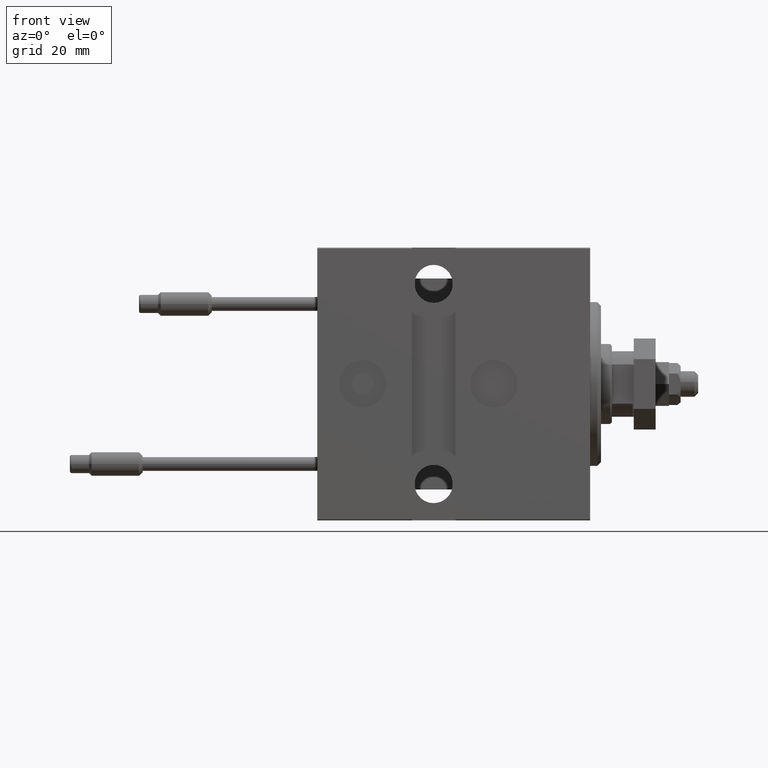
[diagram: clean part render]
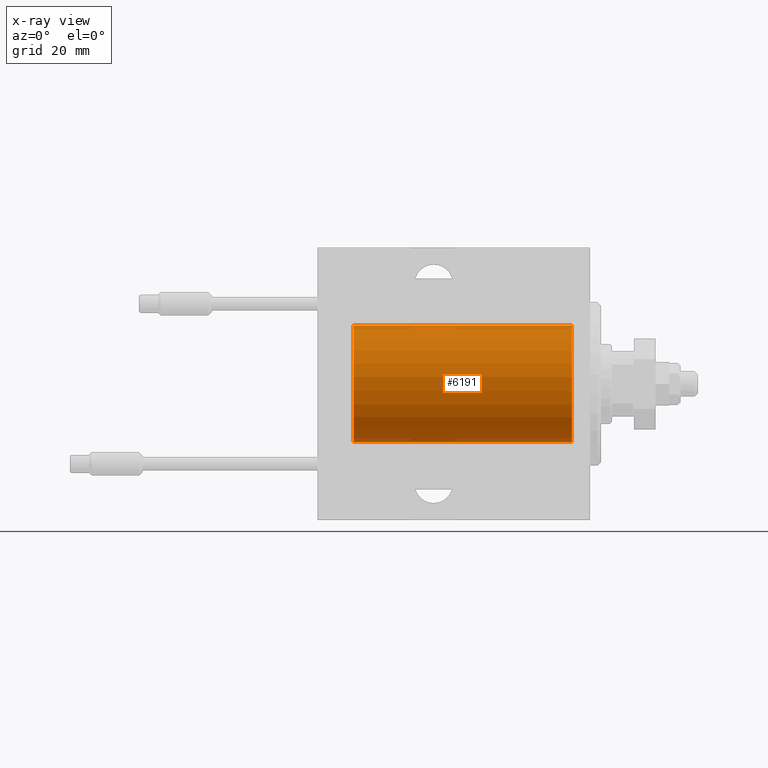
[diagram: x-ray — body ghosted, one internal face saturated and labeled with its STEP entity id]
A machine part, front view, then the same camera in x-ray: the body is ghosted and one INTERNAL B-rep face — a face not visible from any outside direction — is saturated and labeled: STEP entity #6191.
In plain terms, the highlighted cylindrical surface (partial cylindrical patch) has radius 16 mm, axis along (1, 0, -0).
Its self-contained STEP definition (entity closure, byte-faithful):
#908 = CARTESIAN_POINT ( 'NONE',  ( 4.999999999999997335, 0.000000000000000000, 0.000000000000000000 ) ) ;
#1886 = VERTEX_POINT ( 'NONE', #4351 ) ;
#2422 = DIRECTION ( 'NONE',  ( -1.000000000000000000, -0.000000000000000000, -0.000000000000000000 ) ) ;
#2906 = CIRCLE ( 'NONE', #31025, 16.00000000000000000 ) ;
#2941 = FACE_OUTER_BOUND ( 'NONE', #35648, .T. ) ;
#4351 = CARTESIAN_POINT ( 'NONE',  ( 65.00000000000000000, 0.000000000000000000, 16.00000000000000000 ) ) ;
#6191 = ADVANCED_FACE ( 'NONE', ( #2941 ), #33877, .F. ) ;
#6341 = EDGE_CURVE ( 'NONE', #22958, #41804, #2906, .T. ) ;
#7793 = CARTESIAN_POINT ( 'NONE',  ( 65.00000000000000000, 0.000000000000000000, 16.00000000000000000 ) ) ;
#10040 = CIRCLE ( 'NONE', #27714, 16.00000000000000000 ) ;
#18296 = CARTESIAN_POINT ( 'NONE',  ( 65.00000000000000000, 0.000000000000000000, 0.000000000000000000 ) ) ;
#18802 = EDGE_CURVE ( 'NONE', #1886, #22958, #35683, .T. ) ;
#22003 = EDGE_CURVE ( 'NONE', #44555, #41804, #49213, .T. ) ;
#22170 = ORIENTED_EDGE ( 'NONE', *, *, #36539, .F. ) ;
#22958 = VERTEX_POINT ( 'NONE', #32426 ) ;
#23118 = DIRECTION ( 'NONE',  ( -1.000000000000000000, -0.000000000000000000, -0.000000000000000000 ) ) ;
#23230 = CARTESIAN_POINT ( 'NONE',  ( 4.999999999999997335, 1.959434878635765131E-15, -16.00000000000000000 ) ) ;
#24000 = VECTOR ( 'NONE', #23118, 1000.000000000000000 ) ;
#24178 = ORIENTED_EDGE ( 'NONE', *, *, #18802, .T. ) ;
#26099 = CARTESIAN_POINT ( 'NONE',  ( 65.00000000000000000, 0.000000000000000000, 0.000000000000000000 ) ) ;
#27714 = AXIS2_PLACEMENT_3D ( 'NONE', #26099, #44971, #48511 ) ;
#28698 = ORIENTED_EDGE ( 'NONE', *, *, #22003, .F. ) ;
#29841 = CARTESIAN_POINT ( 'NONE',  ( 65.00000000000000000, 1.959434878635765131E-15, -16.00000000000000000 ) ) ;
#31025 = AXIS2_PLACEMENT_3D ( 'NONE', #908, #31831, #46968 ) ;
#31359 = VECTOR ( 'NONE', #2422, 1000.000000000000000 ) ;
#31831 = DIRECTION ( 'NONE',  ( -1.000000000000000000, 0.000000000000000000, 0.000000000000000000 ) ) ;
#32190 = DIRECTION ( 'NONE',  ( -1.000000000000000000, -0.000000000000000000, -0.000000000000000000 ) ) ;
#32426 = CARTESIAN_POINT ( 'NONE',  ( 4.999999999999997335, 0.000000000000000000, 16.00000000000000000 ) ) ;
#33624 = DIRECTION ( 'NONE',  ( 0.000000000000000000, 0.000000000000000000, 1.000000000000000000 ) ) ;
#33877 = CYLINDRICAL_SURFACE ( 'NONE', #37459, 16.00000000000000000 ) ;
#35648 = EDGE_LOOP ( 'NONE', ( #28698, #22170, #24178, #43570 ) ) ;
#35683 = LINE ( 'NONE', #7793, #24000 ) ;
#36539 = EDGE_CURVE ( 'NONE', #1886, #44555, #10040, .T. ) ;
#36896 = CARTESIAN_POINT ( 'NONE',  ( 65.00000000000000000, 1.959434878635765131E-15, -16.00000000000000000 ) ) ;
#37459 = AXIS2_PLACEMENT_3D ( 'NONE', #18296, #32190, #33624 ) ;
#41804 = VERTEX_POINT ( 'NONE', #23230 ) ;
#43570 = ORIENTED_EDGE ( 'NONE', *, *, #6341, .T. ) ;
#44555 = VERTEX_POINT ( 'NONE', #29841 ) ;
#44971 = DIRECTION ( 'NONE',  ( -1.000000000000000000, 0.000000000000000000, 0.000000000000000000 ) ) ;
#46968 = DIRECTION ( 'NONE',  ( 0.000000000000000000, 0.000000000000000000, 1.000000000000000000 ) ) ;
#48511 = DIRECTION ( 'NONE',  ( 0.000000000000000000, 0.000000000000000000, 1.000000000000000000 ) ) ;
#49213 = LINE ( 'NONE', #36896, #31359 ) ;